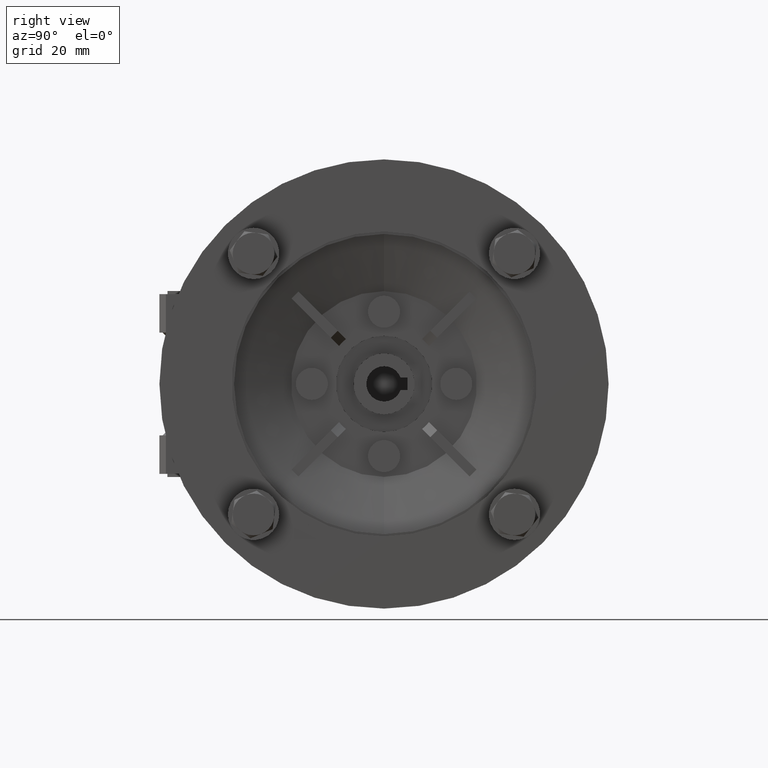
[diagram: clean part render]
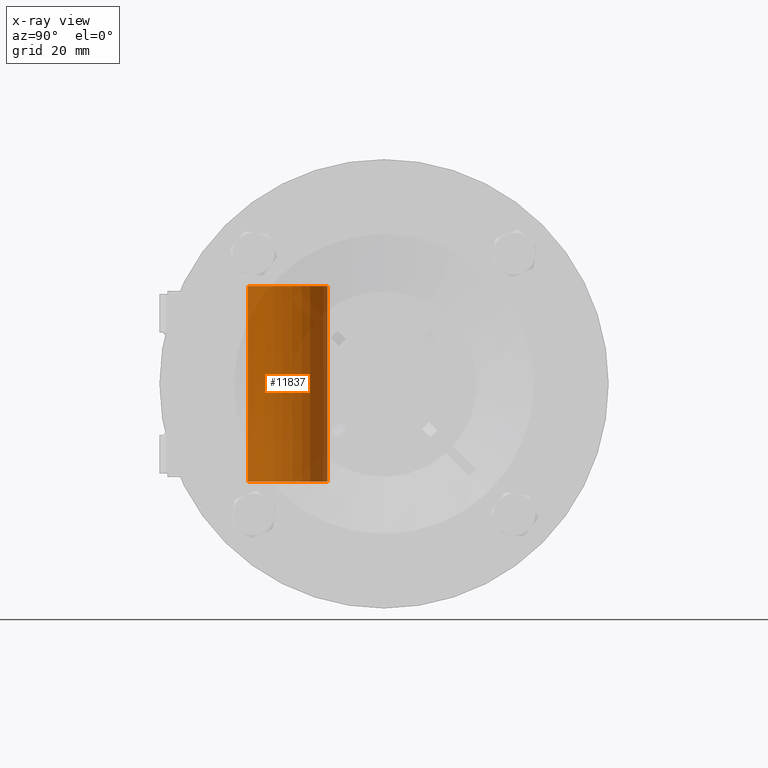
[diagram: x-ray — body ghosted, one internal face saturated and labeled with its STEP entity id]
A machine part, right view, then the same camera in x-ray: the body is ghosted and one INTERNAL B-rep face — a face not visible from any outside direction — is saturated and labeled: STEP entity #11837.
In plain terms, the highlighted cylindrical surface (partial cylindrical patch) has radius 12.4 mm, axis along (0, 0, -1).
Its self-contained STEP definition (entity closure, byte-faithful):
#1797 = AXIS2_PLACEMENT_3D ( 'NONE', #20862, #18901, #31075 ) ;
#2356 = CIRCLE ( 'NONE', #6016, 12.40000000000000036 ) ;
#4043 = DIRECTION ( 'NONE',  ( 0.000000000000000000, -1.000000000000000000, 0.000000000000000000 ) ) ;
#6016 = AXIS2_PLACEMENT_3D ( 'NONE', #30175, #22868, #24985 ) ;
#6957 = CARTESIAN_POINT ( 'NONE',  ( -1.518562030942717967E-15, 12.40000000000000036, 30.50000000000000000 ) ) ;
#6997 = CARTESIAN_POINT ( 'NONE',  ( -1.518562030942717967E-15, 12.40000000000000036, -30.50000000000000000 ) ) ;
#7225 = VERTEX_POINT ( 'NONE', #31154 ) ;
#8586 = CARTESIAN_POINT ( 'NONE',  ( 0.000000000000000000, -12.40000000000000036, -30.50000000000000000 ) ) ;
#9542 = VERTEX_POINT ( 'NONE', #8586 ) ;
#9558 = DIRECTION ( 'NONE',  ( 0.000000000000000000, 0.000000000000000000, 1.000000000000000000 ) ) ;
#11075 = AXIS2_PLACEMENT_3D ( 'NONE', #18974, #9558, #4043 ) ;
#11133 = FACE_OUTER_BOUND ( 'NONE', #11529, .T. ) ;
#11529 = EDGE_LOOP ( 'NONE', ( #31723, #16853, #13989, #31993 ) ) ;
#11837 = ADVANCED_FACE ( 'NONE', ( #11133 ), #28476, .F. ) ;
#12975 = LINE ( 'NONE', #27388, #23488 ) ;
#13647 = CARTESIAN_POINT ( 'NONE',  ( 0.000000000000000000, -12.40000000000000036, -39.00000000000000000 ) ) ;
#13989 = ORIENTED_EDGE ( 'NONE', *, *, #15533, .F. ) ;
#15533 = EDGE_CURVE ( 'NONE', #9542, #20520, #25026, .T. ) ;
#16812 = EDGE_CURVE ( 'NONE', #26929, #20520, #12975, .T. ) ;
#16853 = ORIENTED_EDGE ( 'NONE', *, *, #16812, .T. ) ;
#16888 = VECTOR ( 'NONE', #28225, 1000.000000000000000 ) ;
#18901 = DIRECTION ( 'NONE',  ( 0.000000000000000000, 0.000000000000000000, -1.000000000000000000 ) ) ;
#18974 = CARTESIAN_POINT ( 'NONE',  ( 0.000000000000000000, 0.000000000000000000, -30.50000000000000000 ) ) ;
#19120 = EDGE_CURVE ( 'NONE', #26929, #7225, #2356, .T. ) ;
#19254 = EDGE_CURVE ( 'NONE', #7225, #9542, #23525, .T. ) ;
#20520 = VERTEX_POINT ( 'NONE', #6997 ) ;
#20862 = CARTESIAN_POINT ( 'NONE',  ( 0.000000000000000000, 0.000000000000000000, -39.00000000000000000 ) ) ;
#22845 = DIRECTION ( 'NONE',  ( 0.000000000000000000, 0.000000000000000000, -1.000000000000000000 ) ) ;
#22868 = DIRECTION ( 'NONE',  ( 0.000000000000000000, 0.000000000000000000, -1.000000000000000000 ) ) ;
#23488 = VECTOR ( 'NONE', #22845, 1000.000000000000000 ) ;
#23525 = LINE ( 'NONE', #13647, #16888 ) ;
#24985 = DIRECTION ( 'NONE',  ( 0.000000000000000000, -1.000000000000000000, 0.000000000000000000 ) ) ;
#25026 = CIRCLE ( 'NONE', #11075, 12.40000000000000036 ) ;
#26929 = VERTEX_POINT ( 'NONE', #6957 ) ;
#27388 = CARTESIAN_POINT ( 'NONE',  ( -1.518562030942717967E-15, 12.40000000000000036, -39.00000000000000000 ) ) ;
#28225 = DIRECTION ( 'NONE',  ( 0.000000000000000000, 0.000000000000000000, -1.000000000000000000 ) ) ;
#28476 = CYLINDRICAL_SURFACE ( 'NONE', #1797, 12.40000000000000036 ) ;
#30175 = CARTESIAN_POINT ( 'NONE',  ( 0.000000000000000000, 0.000000000000000000, 30.50000000000000000 ) ) ;
#31075 = DIRECTION ( 'NONE',  ( 0.000000000000000000, -1.000000000000000000, 0.000000000000000000 ) ) ;
#31154 = CARTESIAN_POINT ( 'NONE',  ( 0.000000000000000000, -12.40000000000000036, 30.50000000000000000 ) ) ;
#31723 = ORIENTED_EDGE ( 'NONE', *, *, #19120, .F. ) ;
#31993 = ORIENTED_EDGE ( 'NONE', *, *, #19254, .F. ) ;